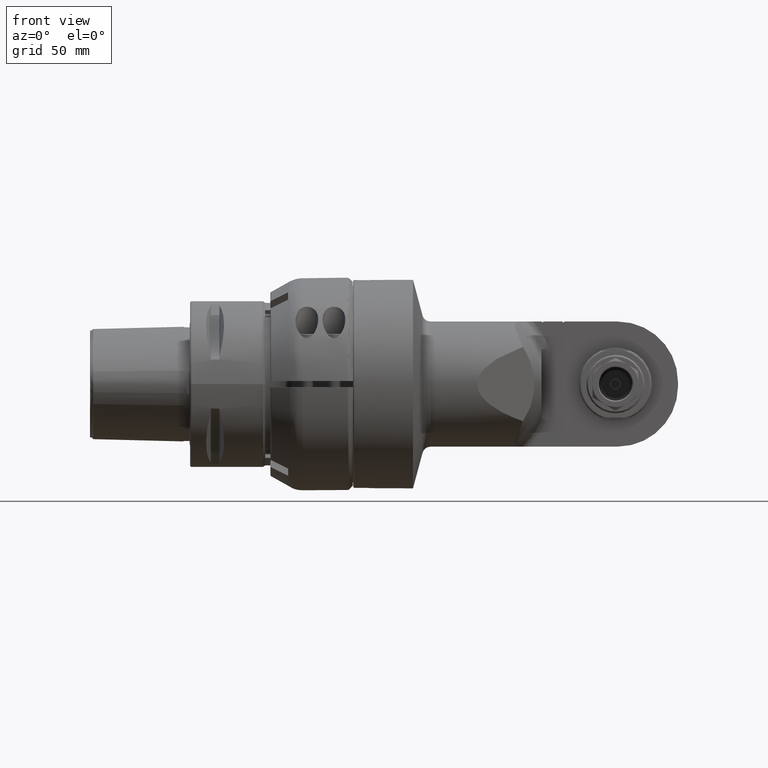
[diagram: clean part render]
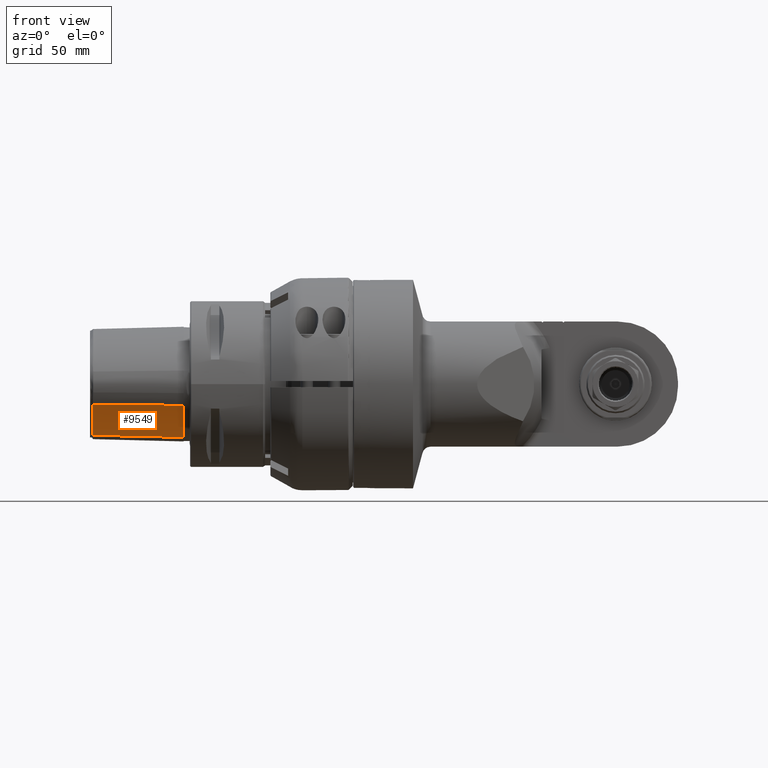
[diagram: same view with one face highlighted and labeled with its STEP entity id]
A machine part, front view. The second image highlights one B-rep face of the part: STEP entity #9549.
In plain terms, the highlighted face is a freeform B-spline surface patch.
Its self-contained STEP definition (entity closure, byte-faithful):
#40=B_SPLINE_SURFACE_WITH_KNOTS('',3,3,((#20363,#20364,#20365,#20366),(#20367,
#20368,#20369,#20370),(#20371,#20372,#20373,#20374),(#20375,#20376,#20377,
#20378),(#20379,#20380,#20381,#20382),(#20383,#20384,#20385,#20386),(#20387,
#20388,#20389,#20390),(#20391,#20392,#20393,#20394),(#20395,#20396,#20397,
#20398),(#20399,#20400,#20401,#20402)),.UNSPECIFIED.,.F.,.F.,.F.,(4,1,1,
1,1,1,1,4),(4,4),(-0.0107259969049,0.25,0.375,0.5,0.625,0.75,0.875,1.010691018985),
(-0.01012694892229,1.010007157011),.UNSPECIFIED.);
#177=B_SPLINE_CURVE_WITH_KNOTS('',3,(#18577,#18578,#18579,#18580,#18581,
#18582,#18583,#18584,#18585,#18586,#18587,#18588,#18589,#18590,#18591,#18592,
#18593,#18594,#18595,#18596,#18597,#18598,#18599,#18600,#18601,#18602,#18603,
#18604,#18605,#18606,#18607,#18608,#18609,#18610,#18611,#18612,#18613,#18614,
#18615,#18616,#18617,#18618,#18619,#18620,#18621,#18622,#18623,#18624,#18625,
#18626,#18627,#18628,#18629,#18630,#18631,#18632,#18633,#18634,#18635,#18636,
#18637,#18638,#18639,#18640,#18641,#18642,#18643,#18644,#18645,#18646,#18647,
#18648,#18649,#18650,#18651,#18652,#18653,#18654,#18655,#18656,#18657,#18658,
#18659,#18660,#18661,#18662,#18663,#18664,#18665,#18666,#18667,#18668,#18669,
#18670,#18671,#18672,#18673,#18674,#18675,#18676,#18677,#18678,#18679,#18680,
#18681,#18682,#18683,#18684,#18685,#18686,#18687,#18688,#18689,#18690,#18691,
#18692,#18693,#18694),.UNSPECIFIED.,.F.,.F.,(4,3,3,3,3,3,3,3,3,3,3,3,3,
3,3,3,3,3,3,3,3,3,3,3,3,3,3,3,3,3,3,3,3,3,3,3,3,3,3,4),(0.,0.0622870041525391,
0.06666666666667,0.11139897074853,0.1333333333333,0.183895931217735,0.2,
0.25501359462906,0.2666666666667,0.275112512156344,0.301443019008879,0.328236868691241,
0.3333333333333,0.362383136705167,0.391709608597319,0.397320168098999,0.4,
0.439192329029097,0.4666666666667,0.497540872577686,0.521267195945111,0.5333333333333,
0.560857628359454,0.588535454097305,0.6,0.638649238411087,0.645277649600782,
0.6666666666667,0.695382491576147,0.72419186363134,0.7333333333333,0.764550006577,
0.8,0.83455249474933,0.8666666666667,0.883183014173246,0.921022903558919,
0.9333333333333,0.973509738465905,1.),.UNSPECIFIED.);
#191=B_SPLINE_CURVE_WITH_KNOTS('',3,(#19561,#19562,#19563,#19564,#19565,
#19566,#19567,#19568,#19569,#19570,#19571,#19572),.UNSPECIFIED.,.F.,.F.,
(4,2,2,2,2,4),(1.28778097801693E-5,1.1987304377127,1.88951208309991,2.22421870955191,
2.38671795243944,2.54616803461731),.UNSPECIFIED.);
#921=LINE('',#20362,#1592);
#922=LINE('',#20403,#1593);
#1592=VECTOR('',#12980,10.);
#1593=VECTOR('',#12981,10.);
#2388=FACE_OUTER_BOUND('',#3025,.T.);
#3025=EDGE_LOOP('',(#8137,#8138,#8139,#8140));
#4398=VERTEX_POINT('',#18571);
#4399=VERTEX_POINT('',#18576);
#4412=VERTEX_POINT('',#19551);
#4413=VERTEX_POINT('',#19560);
#5643=EDGE_CURVE('',#4398,#4399,#177,.T.);
#5660=EDGE_CURVE('',#4413,#4412,#191,.T.);
#5743=EDGE_CURVE('',#4398,#4413,#921,.T.);
#5744=EDGE_CURVE('',#4399,#4412,#922,.T.);
#8137=ORIENTED_EDGE('',*,*,#5744,.F.);
#8138=ORIENTED_EDGE('',*,*,#5643,.F.);
#8139=ORIENTED_EDGE('',*,*,#5743,.T.);
#8140=ORIENTED_EDGE('',*,*,#5660,.T.);
#9549=ADVANCED_FACE('',(#2388),#40,.T.);
#12980=DIRECTION('',(-0.999684676980005,0.020845942222034,0.0139997608643608));
#12981=DIRECTION('',(-0.999684637719667,0.00800291773396753,0.0238029077014179));
#18571=CARTESIAN_POINT('',(-207.,-25.77554752159,-10.22079906537));
#18576=CARTESIAN_POINT('',(-207.,-5.049513019338,-25.57088110467));
#18577=CARTESIAN_POINT('Ctrl Pts',(-207.,-25.7755475215864,-10.2207990653676));
#18578=CARTESIAN_POINT('Ctrl Pts',(-207.,-25.5495701598998,-10.5614604511981));
#18579=CARTESIAN_POINT('Ctrl Pts',(-206.999999910094,-25.3075694614693,
-10.909808996441));
#18580=CARTESIAN_POINT('Ctrl Pts',(-206.999999982493,-25.0483089344131,
-11.2652355945041));
#18581=CARTESIAN_POINT('Ctrl Pts',(-206.999999987584,-25.0300792310072,
-11.2902271408024));
#18582=CARTESIAN_POINT('Ctrl Pts',(-206.999999993402,-25.0117642151785,
-11.3152536839272));
#18583=CARTESIAN_POINT('Ctrl Pts',(-207.,-24.9933634673528,-11.3403150132644));
#18584=CARTESIAN_POINT('Ctrl Pts',(-207.00000006739,-24.805424820387,-11.5962824539048));
#18585=CARTESIAN_POINT('Ctrl Pts',(-207.000000056603,-24.6085400488525,
-11.8558758797643));
#18586=CARTESIAN_POINT('Ctrl Pts',(-207.000000036834,-24.4024285741244,
-12.1186846847624));
#18587=CARTESIAN_POINT('Ctrl Pts',(-207.00000002714,-24.3013623779522,-12.247552261285));
#18588=CARTESIAN_POINT('Ctrl Pts',(-207.000000014222,-24.1980784609964,
-12.377193120467));
#18589=CARTESIAN_POINT('Ctrl Pts',(-207.,-24.0925482395758,-12.5075599105016));
#18590=CARTESIAN_POINT('Ctrl Pts',(-206.999999967216,-23.8492823534704,
-12.8080784943689));
#18591=CARTESIAN_POINT('Ctrl Pts',(-207.000000050586,-23.5940757979995,
-13.1124557656962));
#18592=CARTESIAN_POINT('Ctrl Pts',(-207.000000044384,-23.3264502625061,
-13.4203325331193));
#18593=CARTESIAN_POINT('Ctrl Pts',(-207.000000042408,-23.2412121574283,
-13.518390561118));
#18594=CARTESIAN_POINT('Ctrl Pts',(-207.000000030568,-23.1547146453875,
-13.6168036555812));
#18595=CARTESIAN_POINT('Ctrl Pts',(-207.,-23.0669433782687,-13.7155604289771));
#18596=CARTESIAN_POINT('Ctrl Pts',(-206.999999895575,-22.7671053078631,
-14.0529264184007));
#18597=CARTESIAN_POINT('Ctrl Pts',(-206.999999649459,-22.4523986032274,
-14.3943030308382));
#18598=CARTESIAN_POINT('Ctrl Pts',(-206.999999827109,-22.1221626641952,
-14.7393817667282));
#18599=CARTESIAN_POINT('Ctrl Pts',(-206.999999864739,-22.0522115327901,
-14.8124769242997));
#18600=CARTESIAN_POINT('Ctrl Pts',(-206.999999920862,-21.981563812569,-14.8857382168536));
#18601=CARTESIAN_POINT('Ctrl Pts',(-207.,-21.9102135291106,-14.9591627569219));
#18602=CARTESIAN_POINT('Ctrl Pts',(-207.000000057357,-21.8585006873994,
-15.0123789662237));
#18603=CARTESIAN_POINT('Ctrl Pts',(-207.000000100446,-21.8064223445974,
-15.0656772231859));
#18604=CARTESIAN_POINT('Ctrl Pts',(-207.00000013226,-21.7539904370228,-15.1190422854408));
#18605=CARTESIAN_POINT('Ctrl Pts',(-207.000000231442,-21.5905303425447,
-15.2854115541078));
#18606=CARTESIAN_POINT('Ctrl Pts',(-207.000000222561,-21.4236299022662,
-15.45242988701));
#18607=CARTESIAN_POINT('Ctrl Pts',(-207.000000182274,-21.2537530251647,
-15.6195068708565));
#18608=CARTESIAN_POINT('Ctrl Pts',(-207.000000141278,-21.0808867930386,
-15.7895239394849));
#18609=CARTESIAN_POINT('Ctrl Pts',(-207.000000067541,-20.9049386208255,
-15.9596012251894));
#18610=CARTESIAN_POINT('Ctrl Pts',(-207.000000022429,-20.7264503309428,
-16.1291255029015));
#18611=CARTESIAN_POINT('Ctrl Pts',(-207.000000013848,-20.6925000300644,
-16.1613707568524));
#18612=CARTESIAN_POINT('Ctrl Pts',(-207.000000006253,-20.6584579744887,
-16.1935960418477));
#18613=CARTESIAN_POINT('Ctrl Pts',(-207.,-20.6243280954546,-16.2257971980117));
#18614=CARTESIAN_POINT('Ctrl Pts',(-206.999999964357,-20.4297880869033,
-16.4093435032664));
#18615=CARTESIAN_POINT('Ctrl Pts',(-207.000000045943,-20.2323771973509,
-16.5921170402711));
#18616=CARTESIAN_POINT('Ctrl Pts',(-207.000000113859,-20.0327117532953,
-16.7734921616002));
#18617=CARTESIAN_POINT('Ctrl Pts',(-207.000000182423,-19.8311447079706,
-16.9565946883024));
#18618=CARTESIAN_POINT('Ctrl Pts',(-207.000000236685,-19.6272804109956,
-17.1382714011364));
#18619=CARTESIAN_POINT('Ctrl Pts',(-207.000000131234,-19.4217979628043,
-17.3179061143856));
#18620=CARTESIAN_POINT('Ctrl Pts',(-207.00000011106,-19.3824863297389,-17.3522727184203));
#18621=CARTESIAN_POINT('Ctrl Pts',(-207.000000085019,-19.3431155898946,
-17.3865646796566));
#18622=CARTESIAN_POINT('Ctrl Pts',(-207.000000052065,-19.3036906615707,
-17.420777826552));
#18623=CARTESIAN_POINT('Ctrl Pts',(-207.000000036325,-19.2848597088671,
-17.4371194200163));
#18624=CARTESIAN_POINT('Ctrl Pts',(-207.000000019008,-19.266016394282,-17.4534430334516));
#18625=CARTESIAN_POINT('Ctrl Pts',(-207.,-19.2471612590616,-17.4697482163718));
#18626=CARTESIAN_POINT('Ctrl Pts',(-206.999999722007,-18.9714064017617,
-17.7082102235035));
#18627=CARTESIAN_POINT('Ctrl Pts',(-206.999999807143,-18.693110267654,-17.9427369455615));
#18628=CARTESIAN_POINT('Ctrl Pts',(-206.999999902248,-18.413041150378,-18.17275172527));
#18629=CARTESIAN_POINT('Ctrl Pts',(-206.999999968918,-18.2167090190522,
-18.3339951082457));
#18630=CARTESIAN_POINT('Ctrl Pts',(-207.000000040675,-18.0195058093589,
-18.4930221830843));
#18631=CARTESIAN_POINT('Ctrl Pts',(-207.,-17.8216967989359,-18.6496496829405));
#18632=CARTESIAN_POINT('Ctrl Pts',(-206.999999954291,-17.5994095067214,
-18.8256593740808));
#18633=CARTESIAN_POINT('Ctrl Pts',(-207.000000275203,-17.3763518661288,
-18.9986498904695));
#18634=CARTESIAN_POINT('Ctrl Pts',(-207.000000481951,-17.1522231414515,
-19.168873409653));
#18635=CARTESIAN_POINT('Ctrl Pts',(-207.000000640834,-16.9799838743768,
-19.2996874060528));
#18636=CARTESIAN_POINT('Ctrl Pts',(-207.000000732555,-16.8071110806595,
-19.4288667998652));
#18637=CARTESIAN_POINT('Ctrl Pts',(-207.000000540827,-16.6334534473135,
-19.5565112931135));
#18638=CARTESIAN_POINT('Ctrl Pts',(-207.000000443323,-16.5451390114857,
-19.6214255222813));
#18639=CARTESIAN_POINT('Ctrl Pts',(-207.000000272525,-16.4566214054465,
-19.6859425616059));
#18640=CARTESIAN_POINT('Ctrl Pts',(-207.,-16.3678728635288,-19.7500867904963));
#18641=CARTESIAN_POINT('Ctrl Pts',(-206.999999378339,-16.1654268800051,
-19.8964074085537));
#18642=CARTESIAN_POINT('Ctrl Pts',(-206.999998985382,-15.96182160928,-20.0407621440685));
#18643=CARTESIAN_POINT('Ctrl Pts',(-206.999998857206,-15.7564981986808,
-20.1835679729883));
#18644=CARTESIAN_POINT('Ctrl Pts',(-206.999998728316,-15.5500294926498,
-20.3271703738286));
#18645=CARTESIAN_POINT('Ctrl Pts',(-206.999998867541,-15.3418233065339,
-20.469206572611));
#18646=CARTESIAN_POINT('Ctrl Pts',(-206.999999303847,-15.131285571407,-20.6100546789826));
#18647=CARTESIAN_POINT('Ctrl Pts',(-206.999999484572,-15.0440778712258,
-20.6683959517436));
#18648=CARTESIAN_POINT('Ctrl Pts',(-206.999999716144,-14.9564698450181,
-20.7265328351632));
#18649=CARTESIAN_POINT('Ctrl Pts',(-207.,-14.8684180577221,-20.7844898850089));
#18650=CARTESIAN_POINT('Ctrl Pts',(-207.000000956935,-14.5715781698967,
-20.9798744956252));
#18651=CARTESIAN_POINT('Ctrl Pts',(-207.000000774985,-14.2697786076001,
-21.1731533923784));
#18652=CARTESIAN_POINT('Ctrl Pts',(-207.000000471481,-13.9634122402018,
-21.363919162466));
#18653=CARTESIAN_POINT('Ctrl Pts',(-207.000000419429,-13.9108698786626,
-21.3966358217598));
#18654=CARTESIAN_POINT('Ctrl Pts',(-207.000000363755,-13.8581932723463,
-21.4292786593391));
#18655=CARTESIAN_POINT('Ctrl Pts',(-207.000000309535,-13.8053844989705,
-21.4618457403037));
#18656=CARTESIAN_POINT('Ctrl Pts',(-207.000000134575,-13.634977485489,-21.5669354564669));
#18657=CARTESIAN_POINT('Ctrl Pts',(-206.999999974857,-13.4631935209889,
-21.6712363355228));
#18658=CARTESIAN_POINT('Ctrl Pts',(-207.,-13.2902364797144,-21.7746133475942));
#18659=CARTESIAN_POINT('Ctrl Pts',(-207.000000033756,-13.0580330035665,
-21.9134021553808));
#18660=CARTESIAN_POINT('Ctrl Pts',(-207.000000131525,-12.8236038627765,
-22.0505881031069));
#18661=CARTESIAN_POINT('Ctrl Pts',(-207.000000189929,-12.5878850063968,
-22.185609075686));
#18662=CARTESIAN_POINT('Ctrl Pts',(-207.000000248523,-12.351398251958,-22.3210699042205));
#18663=CARTESIAN_POINT('Ctrl Pts',(-207.000000267081,-12.1136145922669,
-22.454351021989));
#18664=CARTESIAN_POINT('Ctrl Pts',(-207.00000015211,-11.8755044927966,-22.58492952333));
#18665=CARTESIAN_POINT('Ctrl Pts',(-207.000000115628,-11.7999500428117,
-22.6263632418938));
#18666=CARTESIAN_POINT('Ctrl Pts',(-207.00000006581,-11.7243628400313,-22.667525221301));
#18667=CARTESIAN_POINT('Ctrl Pts',(-207.,-11.6487741065992,-22.7083998426946));
#18668=CARTESIAN_POINT('Ctrl Pts',(-206.999999775269,-11.3906505368247,
-22.8479802101412));
#18669=CARTESIAN_POINT('Ctrl Pts',(-206.999999887983,-11.1323529981751,
-22.9842936392515));
#18670=CARTESIAN_POINT('Ctrl Pts',(-207.000000011312,-10.8744928804513,
-23.1170649662052));
#18671=CARTESIAN_POINT('Ctrl Pts',(-207.000000151365,-10.5816641281367,
-23.2678415281574));
#18672=CARTESIAN_POINT('Ctrl Pts',(-207.000000304828,-10.2893996946361,
-23.4140497369568));
#18673=CARTESIAN_POINT('Ctrl Pts',(-207.,-9.99778351454774,-23.5557522308519));
#18674=CARTESIAN_POINT('Ctrl Pts',(-206.999999702889,-9.71355027334257,
-23.693867197979));
#18675=CARTESIAN_POINT('Ctrl Pts',(-206.99999967848,-9.43011586965489,-23.8276185015745));
#18676=CARTESIAN_POINT('Ctrl Pts',(-206.999999745011,-9.14695131754083,
-23.9573571089521));
#18677=CARTESIAN_POINT('Ctrl Pts',(-206.999999806847,-8.88376930496929,
-24.077940238242));
#18678=CARTESIAN_POINT('Ctrl Pts',(-206.999999947336,-8.62082056761749,
-24.1950563160631));
#18679=CARTESIAN_POINT('Ctrl Pts',(-207.,-8.35768405752231,-24.3089469738936));
#18680=CARTESIAN_POINT('Ctrl Pts',(-207.000000027085,-8.22235271366658,
-24.3675210416702));
#18681=CARTESIAN_POINT('Ctrl Pts',(-207.000000013581,-8.0869718800647,-24.4252412668775));
#18682=CARTESIAN_POINT('Ctrl Pts',(-206.999999985612,-7.95149305578951,
-24.4821332952284));
#18683=CARTESIAN_POINT('Ctrl Pts',(-206.999999921536,-7.64110338139919,
-24.6124761606148));
#18684=CARTESIAN_POINT('Ctrl Pts',(-206.999999784909,-7.33019933671757,
-24.7384754242536));
#18685=CARTESIAN_POINT('Ctrl Pts',(-206.999999856598,-7.01821025163615,
-24.8603923718558));
#18686=CARTESIAN_POINT('Ctrl Pts',(-206.999999879921,-6.91671101935451,
-24.9000555433431));
#18687=CARTESIAN_POINT('Ctrl Pts',(-206.999999924898,-6.81509694924903,
-24.9392862304479));
#18688=CARTESIAN_POINT('Ctrl Pts',(-207.,-6.71334838140739,-24.9780922532927));
#18689=CARTESIAN_POINT('Ctrl Pts',(-207.000000245104,-6.38128104028376,
-25.104739862188));
#18690=CARTESIAN_POINT('Ctrl Pts',(-207.000000196807,-6.04776999609926,
-25.2268639208761));
#18691=CARTESIAN_POINT('Ctrl Pts',(-207.000000117643,-5.71306449821702,
-25.344394741417));
#18692=CARTESIAN_POINT('Ctrl Pts',(-207.000000065447,-5.49237685464772,
-25.4218885381908));
#18693=CARTESIAN_POINT('Ctrl Pts',(-207.,-5.2711697582186,-25.4973865723283));
#18694=CARTESIAN_POINT('Ctrl Pts',(-207.,-5.04951301933808,-25.5708811046702));
#19551=CARTESIAN_POINT('',(-250.499931542969,-4.70127682655313,-24.5351296117221));
#19560=CARTESIAN_POINT('',(-250.500724033824,-24.8684479113144,-9.61160724084914));
#19561=CARTESIAN_POINT('Ctrl Pts',(-250.500724033833,-24.8684479113161,
-9.61160724085033));
#19562=CARTESIAN_POINT('Ctrl Pts',(-250.485799922731,-22.6393230757715,
-12.9277219530026));
#19563=CARTESIAN_POINT('Ctrl Pts',(-250.50307471718,-19.6945780999642,-15.8834559384157));
#19564=CARTESIAN_POINT('Ctrl Pts',(-250.499129056194,-14.6645019057479,
-19.6783300193355));
#19565=CARTESIAN_POINT('Ctrl Pts',(-250.495557020135,-12.6849552052358,
-20.924638698033));
#19566=CARTESIAN_POINT('Ctrl Pts',(-250.501913446848,-9.68787970960379,
-22.4961725332974));
#19567=CARTESIAN_POINT('Ctrl Pts',(-250.505740305361,-8.69196969566945,
-22.9694703122197));
#19568=CARTESIAN_POINT('Ctrl Pts',(-250.506075052619,-7.18366697046047,
-23.612662837629));
#19569=CARTESIAN_POINT('Ctrl Pts',(-250.505471597827,-6.68685464994734,
-23.8130443069542));
#19570=CARTESIAN_POINT('Ctrl Pts',(-250.503135017657,-5.69465561840011,
-24.1904228689181));
#19571=CARTESIAN_POINT('Ctrl Pts',(-250.501442980733,-5.19968720923091,
-24.367681658247));
#19572=CARTESIAN_POINT('Ctrl Pts',(-250.499931542964,-4.70127682655213,
-24.5351296117191));
#20362=CARTESIAN_POINT('',(-207.,-25.7755475215897,-10.2207990653698));
#20363=CARTESIAN_POINT('Ctrl Pts',(-250.9410008796,-25.00072056431,-9.393097836803));
#20364=CARTESIAN_POINT('Ctrl Pts',(-236.1489164742,-25.31017138673,-9.599427063894));
#20365=CARTESIAN_POINT('Ctrl Pts',(-221.3567904646,-25.61870273822,-9.801957396241));
#20366=CARTESIAN_POINT('Ctrl Pts',(-206.5647060694,-25.92815585759,-10.00828338872));
#20367=CARTESIAN_POINT('Ctrl Pts',(-250.9410050138,-23.8639229986,-11.11542877117));
#20368=CARTESIAN_POINT('Ctrl Pts',(-236.148745257,-24.16560389437,-11.32818410746));
#20369=CARTESIAN_POINT('Ctrl Pts',(-221.3567779246,-24.47365916195,-11.5696896293));
#20370=CARTESIAN_POINT('Ctrl Pts',(-206.5645206717,-24.77540921043,-11.78252522318));
#20371=CARTESIAN_POINT('Ctrl Pts',(-250.9410086905,-21.84546517052,-13.59982098033));
#20372=CARTESIAN_POINT('Ctrl Pts',(-236.1486158036,-22.12411213706,-13.83049973605));
#20373=CARTESIAN_POINT('Ctrl Pts',(-221.3568543949,-22.42263620663,-14.07170693153));
#20374=CARTESIAN_POINT('Ctrl Pts',(-206.5644666117,-22.70141667299,-14.30254445918));
#20375=CARTESIAN_POINT('Ctrl Pts',(-250.9410104708,-18.60040733094,-16.64281696971));
#20376=CARTESIAN_POINT('Ctrl Pts',(-236.1485975427,-18.84211730175,-16.90619099755));
#20377=CARTESIAN_POINT('Ctrl Pts',(-221.3570050312,-19.10562352176,-17.19262119966));
#20378=CARTESIAN_POINT('Ctrl Pts',(-206.564598732,-19.34749515286,-17.45621010443));
#20379=CARTESIAN_POINT('Ctrl Pts',(-250.9410106442,-15.99910380704,-18.707880429));
#20380=CARTESIAN_POINT('Ctrl Pts',(-236.1486365513,-16.21412546569,-18.99905786674));
#20381=CARTESIAN_POINT('Ctrl Pts',(-221.3571079379,-16.44963696911,-19.31448515926));
#20382=CARTESIAN_POINT('Ctrl Pts',(-206.5647407311,-16.66481853855,-19.60589018692));
#20383=CARTESIAN_POINT('Ctrl Pts',(-250.9410090545,-13.23023001923,-20.56042971085));
#20384=CARTESIAN_POINT('Ctrl Pts',(-236.148706879,-13.42534447067,-20.86908863781));
#20385=CARTESIAN_POINT('Ctrl Pts',(-221.3571716272,-13.63692074802,-21.2016078364));
#20386=CARTESIAN_POINT('Ctrl Pts',(-206.564875782,-13.83217450522,-21.51048035881));
#20387=CARTESIAN_POINT('Ctrl Pts',(-250.9410065979,-10.38067333244,-22.16504004932));
#20388=CARTESIAN_POINT('Ctrl Pts',(-236.1487884543,-10.5410272113,-22.49601732239));
#20389=CARTESIAN_POINT('Ctrl Pts',(-221.3571650641,-10.71238497934,-22.84680929956));
#20390=CARTESIAN_POINT('Ctrl Pts',(-206.5649519315,-10.87284257885,-23.17795924604));
#20391=CARTESIAN_POINT('Ctrl Pts',(-250.9410031788,-7.449215823453,-23.53291031093));
#20392=CARTESIAN_POINT('Ctrl Pts',(-236.1488626047,-7.587437023026,-23.87694314288));
#20393=CARTESIAN_POINT('Ctrl Pts',(-221.3570538989,-7.730591987102,-24.23290508474));
#20394=CARTESIAN_POINT('Ctrl Pts',(-206.5649162446,-7.868868812782,-24.57704108866));
#20395=CARTESIAN_POINT('Ctrl Pts',(-250.9410017832,-5.477121999927,-24.26923208171));
#20396=CARTESIAN_POINT('Ctrl Pts',(-236.1488920181,-5.602183750395,-24.61895190529));
#20397=CARTESIAN_POINT('Ctrl Pts',(-221.3568828439,-5.72841504394,-24.97271802288));
#20398=CARTESIAN_POINT('Ctrl Pts',(-206.5647741036,-5.853494555902,-25.32247493142));
#20399=CARTESIAN_POINT('Ctrl Pts',(-250.9410012428,-4.456364980741,-24.60484523818));
#20400=CARTESIAN_POINT('Ctrl Pts',(-236.1488971233,-4.572768804044,-24.95781433211));
#20401=CARTESIAN_POINT('Ctrl Pts',(-221.3567612672,-4.688797925111,-25.3095514337));
#20402=CARTESIAN_POINT('Ctrl Pts',(-206.5646570661,-4.805199187262,-25.66251797969));
#20403=CARTESIAN_POINT('',(-207.,-5.04951301933808,-25.5708811046702));